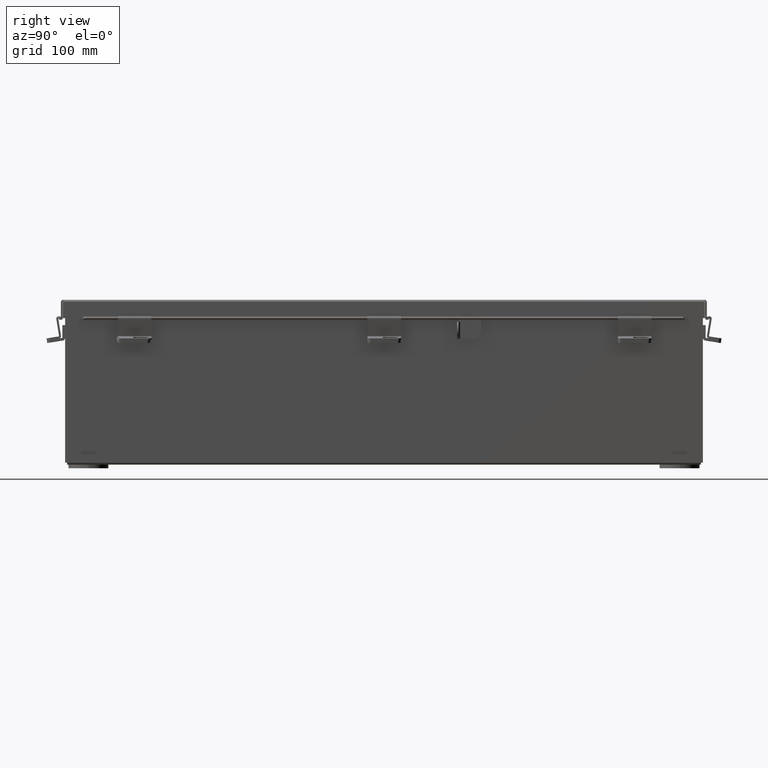
[diagram: clean part render]
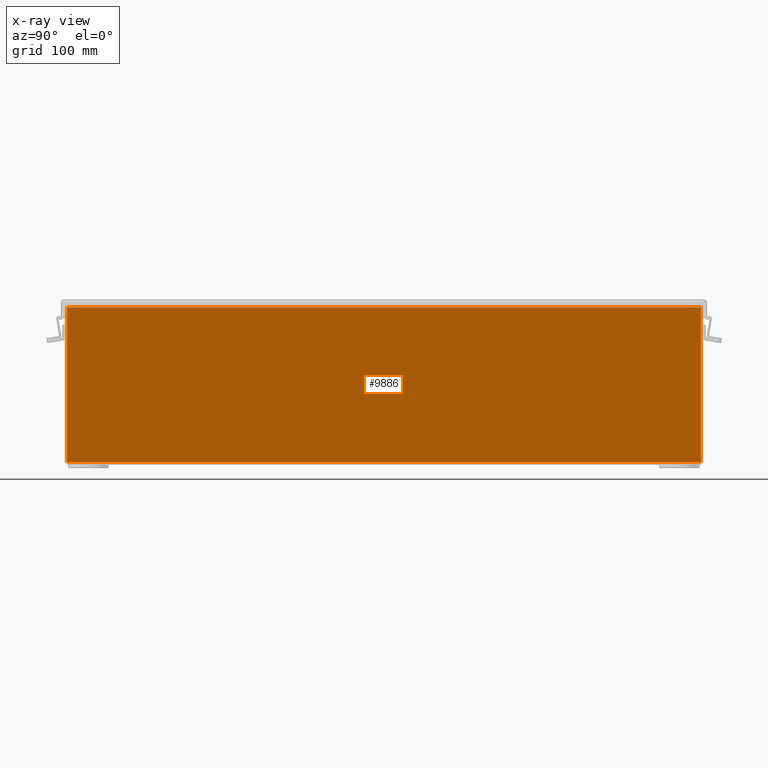
[diagram: x-ray — body ghosted, one internal face saturated and labeled with its STEP entity id]
A machine part, right view, then the same camera in x-ray: the body is ghosted and one INTERNAL B-rep face — a face not visible from any outside direction — is saturated and labeled: STEP entity #9886.
In plain terms, the highlighted planar face has unit normal (-1, 0, 0).
Its self-contained STEP definition (entity closure, byte-faithful):
#654 = VERTEX_POINT ( 'NONE', #16993 ) ;
#1270 = CARTESIAN_POINT ( 'NONE',  ( 2.925299999999999600, 0.0000000000000000000, -1.036394832596379800E-014 ) ) ;
#1813 = CARTESIAN_POINT ( 'NONE',  ( 2.925299999999999600, -11.92530000000000000, 0.0000000000000000000 ) ) ;
#2410 = DIRECTION ( 'NONE',  ( 3.455316574900958600E-015, -3.735477378271307500E-016, 1.000000000000000000 ) ) ;
#2520 = ORIENTED_EDGE ( 'NONE', *, *, #5365, .F. ) ;
#2874 = ORIENTED_EDGE ( 'NONE', *, *, #15693, .F. ) ;
#3035 = DIRECTION ( 'NONE',  ( -1.000000000000000000, 0.0000000000000000000, 3.455316574900958600E-015 ) ) ;
#3411 = LINE ( 'NONE', #18807, #21006 ) ;
#3472 = DIRECTION ( 'NONE',  ( 1.583087998225295500E-031, 1.000000000000000000, 4.581600452255731000E-017 ) ) ;
#3501 = EDGE_LOOP ( 'NONE', ( #3813, #2520, #2874, #11631 ) ) ;
#3772 = LINE ( 'NONE', #1813, #13138 ) ;
#3813 = ORIENTED_EDGE ( 'NONE', *, *, #11261, .F. ) ;
#3981 = VERTEX_POINT ( 'NONE', #8260 ) ;
#4150 = VECTOR ( 'NONE', #2410, 39.37007874015748100 ) ;
#4789 = PLANE ( 'NONE',  #4932 ) ;
#4932 = AXIS2_PLACEMENT_3D ( 'NONE', #1270, #3035, #8332 ) ;
#5365 = EDGE_CURVE ( 'NONE', #12997, #22272, #3411, .T. ) ;
#6505 = DIRECTION ( 'NONE',  ( -0.0000000000000000000, -1.000000000000000000, -0.0000000000000000000 ) ) ;
#8260 = CARTESIAN_POINT ( 'NONE',  ( 2.925299999999999600, -11.92530000000000000, 0.01299999999999967200 ) ) ;
#8332 = DIRECTION ( 'NONE',  ( 3.455316574900958600E-015, 0.0000000000000000000, 1.000000000000000000 ) ) ;
#8729 = EDGE_CURVE ( 'NONE', #3981, #654, #9716, .T. ) ;
#8823 = LINE ( 'NONE', #21701, #4150 ) ;
#9716 = LINE ( 'NONE', #14009, #19620 ) ;
#9886 = ADVANCED_FACE ( 'NONE', ( #11918 ), #4789, .T. ) ;
#11261 = EDGE_CURVE ( 'NONE', #22272, #3981, #3772, .T. ) ;
#11631 = ORIENTED_EDGE ( 'NONE', *, *, #8729, .F. ) ;
#11918 = FACE_OUTER_BOUND ( 'NONE', #3501, .T. ) ;
#12333 = DIRECTION ( 'NONE',  ( -3.455316574900958600E-015, -0.0000000000000000000, -1.000000000000000000 ) ) ;
#12997 = VERTEX_POINT ( 'NONE', #18149 ) ;
#13138 = VECTOR ( 'NONE', #12333, 39.37007874015748100 ) ;
#14009 = CARTESIAN_POINT ( 'NONE',  ( 2.925299999999999600, -11.92530000000000000, 0.01300000000000011600 ) ) ;
#15693 = EDGE_CURVE ( 'NONE', #654, #12997, #8823, .T. ) ;
#16993 = CARTESIAN_POINT ( 'NONE',  ( 2.925299999999999600, 11.92529999999999300, 0.01300000000000163500 ) ) ;
#18149 = CARTESIAN_POINT ( 'NONE',  ( 2.925300000000019600, 11.92529999999999500, 5.837600000000000100 ) ) ;
#18807 = CARTESIAN_POINT ( 'NONE',  ( 2.925300000000018200, 11.92529999999999300, 5.837600000000000100 ) ) ;
#19431 = CARTESIAN_POINT ( 'NONE',  ( 2.925300000000018200, -11.92530000000000000, 5.837600000000000100 ) ) ;
#19620 = VECTOR ( 'NONE', #3472, 39.37007874015748100 ) ;
#21006 = VECTOR ( 'NONE', #6505, 39.37007874015748100 ) ;
#21701 = CARTESIAN_POINT ( 'NONE',  ( 2.925300000000019600, 11.92529999999999500, 5.850600000000000000 ) ) ;
#22272 = VERTEX_POINT ( 'NONE', #19431 ) ;